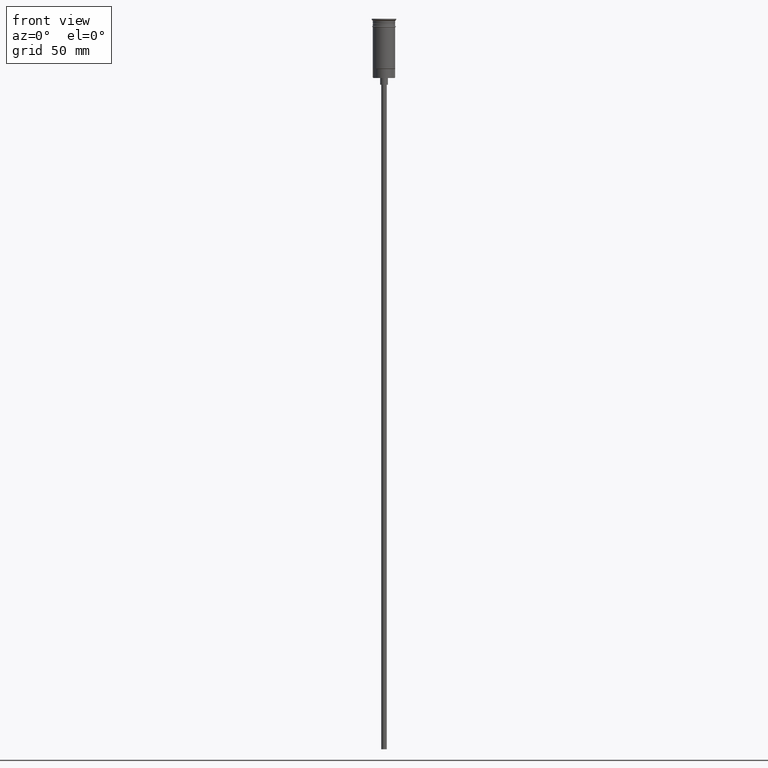
[diagram: clean part render]
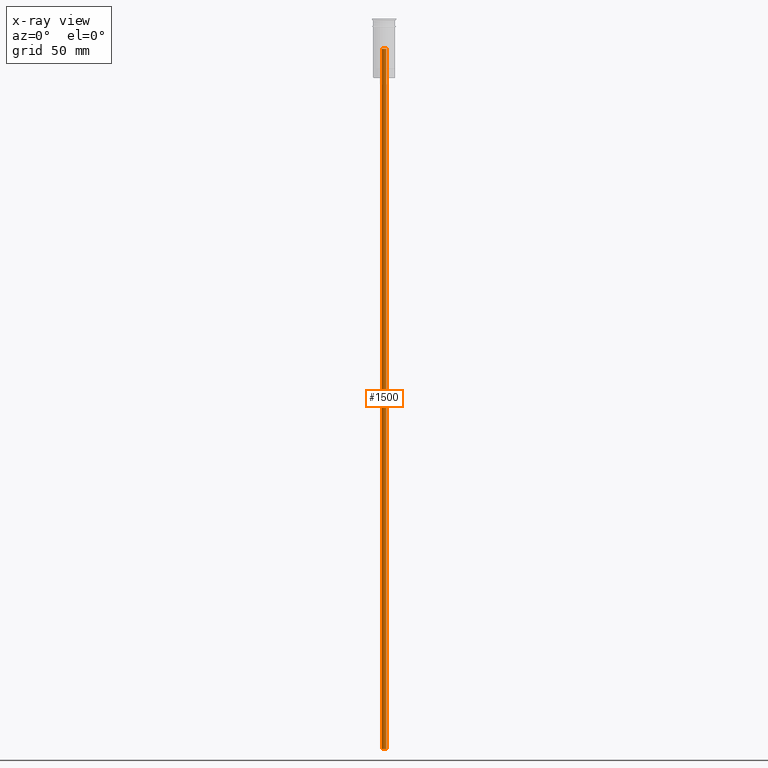
[diagram: x-ray — body ghosted, one internal face saturated and labeled with its STEP entity id]
A machine part, front view, then the same camera in x-ray: the body is ghosted and one INTERNAL B-rep face — a face not visible from any outside direction — is saturated and labeled: STEP entity #1500.
In plain terms, the highlighted cylindrical surface (edge-blend (fillet) strip) has radius 1 mm, axis along (-0, -0, -1).
Its self-contained STEP definition (entity closure, byte-faithful):
#39 = AXIS2_PLACEMENT_3D ( 'NONE', #156, #1495, #1381 ) ;
#76 = CARTESIAN_POINT ( 'NONE',  ( 0.000000000000000000, 0.000000000000000000, -326.5000000000000000 ) ) ;
#156 = CARTESIAN_POINT ( 'NONE',  ( 0.000000000000000000, 0.000000000000000000, -10.67157287525383147 ) ) ;
#300 = VECTOR ( 'NONE', #1489, 1000.000000000000000 ) ;
#309 = VERTEX_POINT ( 'NONE', #1091 ) ;
#361 = CARTESIAN_POINT ( 'NONE',  ( 0.000000000000000000, 0.000000000000000000, -13.49999999999999822 ) ) ;
#383 = CARTESIAN_POINT ( 'NONE',  ( 1.000000000000000000, 1.224646799147353207E-16, -10.67157287525383147 ) ) ;
#387 = CARTESIAN_POINT ( 'NONE',  ( 1.000000000000000000, 1.224646799147353207E-16, -326.5000000000000000 ) ) ;
#416 = ORIENTED_EDGE ( 'NONE', *, *, #1138, .F. ) ;
#561 = DIRECTION ( 'NONE',  ( 0.000000000000000000, 0.000000000000000000, -1.000000000000000000 ) ) ;
#588 = DIRECTION ( 'NONE',  ( -0.000000000000000000, -0.000000000000000000, -1.000000000000000000 ) ) ;
#596 = VECTOR ( 'NONE', #588, 1000.000000000000000 ) ;
#607 = DIRECTION ( 'NONE',  ( 0.000000000000000000, -1.000000000000000000, 0.000000000000000000 ) ) ;
#610 = CYLINDRICAL_SURFACE ( 'NONE', #39, 1.000000000000000000 ) ;
#612 = DIRECTION ( 'NONE',  ( -0.000000000000000000, -3.942553354492746489E-16, -1.000000000000000000 ) ) ;
#619 = EDGE_CURVE ( 'NONE', #911, #1395, #1132, .T. ) ;
#668 = ORIENTED_EDGE ( 'NONE', *, *, #619, .T. ) ;
#770 = ORIENTED_EDGE ( 'NONE', *, *, #836, .F. ) ;
#836 = EDGE_CURVE ( 'NONE', #309, #1036, #1344, .T. ) ;
#911 = VERTEX_POINT ( 'NONE', #387 ) ;
#992 = CARTESIAN_POINT ( 'NONE',  ( -1.000000000000000000, 0.000000000000000000, -13.49999999999999822 ) ) ;
#993 = EDGE_LOOP ( 'NONE', ( #770, #1061, #668, #416 ) ) ;
#1011 = LINE ( 'NONE', #383, #300 ) ;
#1036 = VERTEX_POINT ( 'NONE', #992 ) ;
#1061 = ORIENTED_EDGE ( 'NONE', *, *, #1519, .T. ) ;
#1071 = DIRECTION ( 'NONE',  ( -1.000000000000000000, 0.000000000000000000, 0.000000000000000000 ) ) ;
#1081 = AXIS2_PLACEMENT_3D ( 'NONE', #361, #612, #607 ) ;
#1091 = CARTESIAN_POINT ( 'NONE',  ( 1.000000000000000000, 1.224646799147353207E-16, -13.49999999999999822 ) ) ;
#1092 = LINE ( 'NONE', #1357, #596 ) ;
#1099 = CARTESIAN_POINT ( 'NONE',  ( -1.000000000000000000, 0.000000000000000000, -326.5000000000000000 ) ) ;
#1132 = CIRCLE ( 'NONE', #1385, 1.000000000000000000 ) ;
#1138 = EDGE_CURVE ( 'NONE', #1036, #1395, #1092, .T. ) ;
#1344 = CIRCLE ( 'NONE', #1081, 1.000000000000000000 ) ;
#1357 = CARTESIAN_POINT ( 'NONE',  ( -1.000000000000000000, 0.000000000000000000, -10.67157287525383147 ) ) ;
#1372 = FACE_OUTER_BOUND ( 'NONE', #993, .T. ) ;
#1381 = DIRECTION ( 'NONE',  ( -1.000000000000000000, 0.000000000000000000, 0.000000000000000000 ) ) ;
#1385 = AXIS2_PLACEMENT_3D ( 'NONE', #76, #561, #1071 ) ;
#1395 = VERTEX_POINT ( 'NONE', #1099 ) ;
#1489 = DIRECTION ( 'NONE',  ( -0.000000000000000000, -0.000000000000000000, -1.000000000000000000 ) ) ;
#1495 = DIRECTION ( 'NONE',  ( -0.000000000000000000, -0.000000000000000000, -1.000000000000000000 ) ) ;
#1500 = ADVANCED_FACE ( 'NONE', ( #1372 ), #610, .F. ) ;
#1519 = EDGE_CURVE ( 'NONE', #309, #911, #1011, .T. ) ;